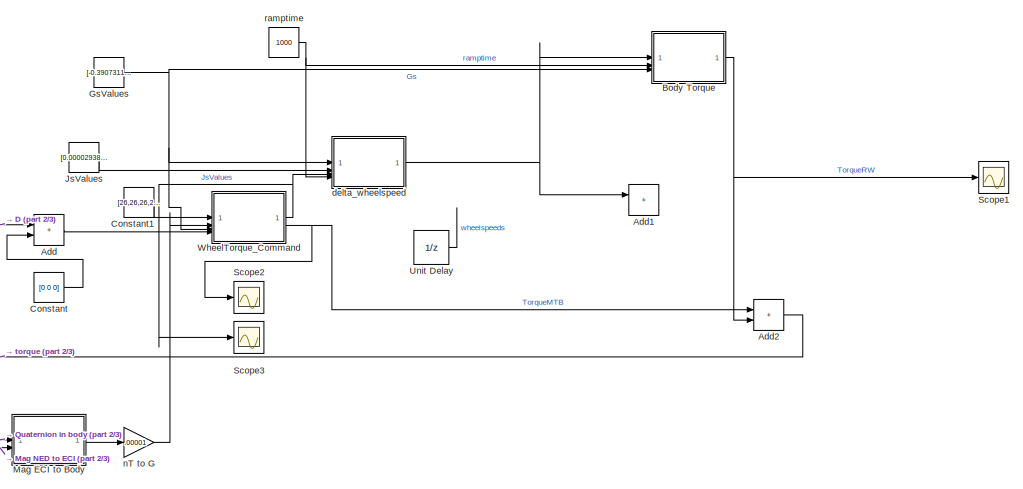
[diagram: root canvas - part 1/3, top center region]
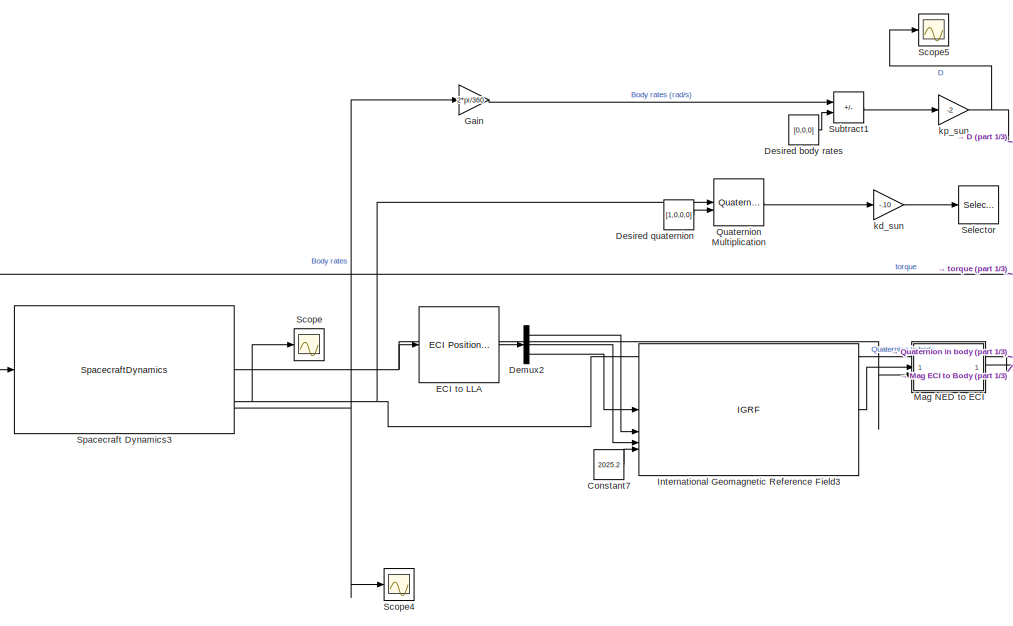
[diagram: root canvas - part 2/3, top left region]
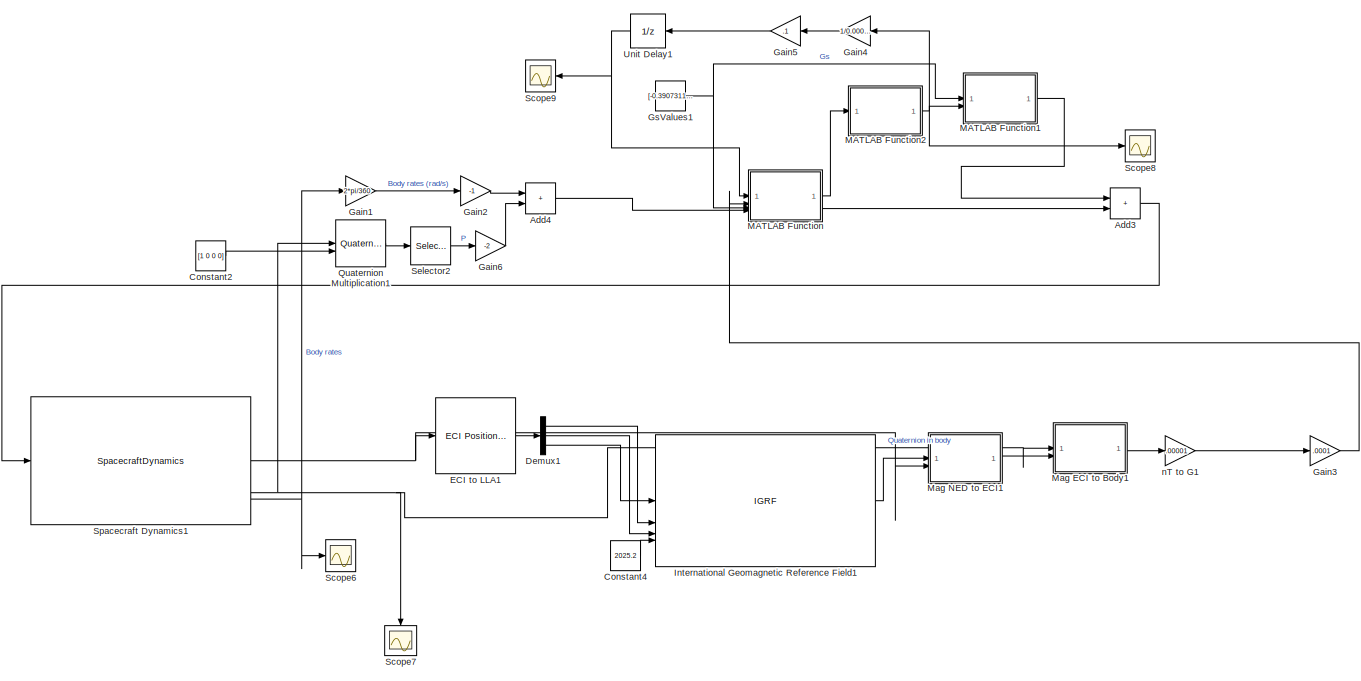
[diagram: root canvas - part 3/3, bottom right region]
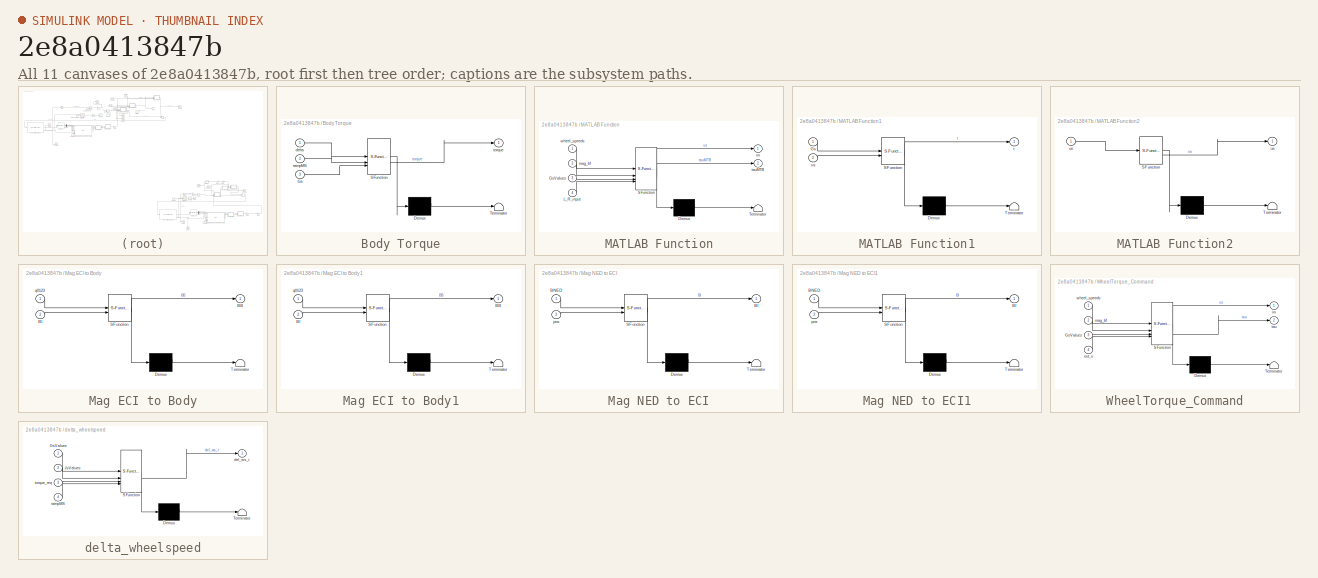
[diagram: thumbnail index - all 11 canvases of the model, root first then tree order]
MODEL slx_2e8a0413847b
KIND model
CONFIG AbsTol = auto
CONFIG EnableMultiTasking = off
CONFIG FixedStep = .1
CONFIG MaxStep = auto
CONFIG MinStep = auto
CONFIG RelTol = 1e-3
CONFIG SampleTimeConstraint = Unconstrained
CONFIG SolverName = FixedStepAuto
CONFIG StartTime = 0.0
CONFIG StopTime = 120
BLOCK [Sum] Add
  Commented = on
  IconShape = rectangular
BLOCK [Sum] Add1
  Commented = on
  IconShape = rectangular
BLOCK [Sum] Add2
  Commented = on
  IconShape = rectangular
BLOCK [Sum] Add3
  IconShape = rectangular
BLOCK [Sum] Add4
  IconShape = rectangular
BLOCK [SubSystem] Body Torque
  Commented = on
  ErrorFcn = Stateflow.Translate.translate
  PermitHierarchicalResolution = ExplicitOnly
  SFBlockType = MATLAB Function
  TreatAsAtomicUnit = on
BLOCK [Demux] Body Torque/ Demux 
  Outputs = 1
BLOCK [S-Function] Body Torque/ SFunction 
  EnableBusSupport = off
  FunctionName = sf_sfun
  PortCounts = [3 2]
  SFcnIsStateOwnerBlock = off
  SFunctionDeploymentMode = off
  Tag = Stateflow S-Function 5
BLOCK [Terminator] Body Torque/ Terminator 
BLOCK [Inport] Body Torque/Gs
  Port = 3
BLOCK [Inport] Body Torque/delta
BLOCK [Inport] Body Torque/rampMS
  Port = 2
BLOCK [Outport] Body Torque/torque
BLOCK [Constant] Constant
  Commented = on
  Value = [0 0 0]
BLOCK [Constant] Constant1
  Commented = on
  Value = [26,26,26,26]
BLOCK [Constant] Constant2
  Value = [1 0 0 0]
BLOCK [Constant] Constant4
  Value = 2025.2
BLOCK [Constant] Constant7
  Commented = on
  Value = 2025.2
BLOCK [Demux] Demux1
  Outputs = 3
BLOCK [Demux] Demux2
  Commented = on
  Outputs = 3
BLOCK [Constant] Desired body rates
  Commented = on
  Value = [0,0,0]
BLOCK [Constant] Desired quaternion
  Commented = on
  Value = [1,0,0,0]
BLOCK [Reference] ECI to LLA  REF=aerolibtransform2/ECI Position to LLA
  AttributesFormatString = %<red>
  Commented = on
  SourceBlock = aerolibtransform2/ECI Position to LLA
  SourceType = ECItoLLA
BLOCK [Reference] ECI to LLA1  REF=aerolibtransform2/ECI Position to LLA
  AttributesFormatString = %<red>
  SourceBlock = aerolibtransform2/ECI Position to LLA
  SourceType = ECItoLLA
BLOCK [Gain] Gain
  Commented = on
  Gain = 2*pi/360
BLOCK [Gain] Gain1
  Gain = 2*pi/360
BLOCK [Gain] Gain2
  Gain = -1
BLOCK [Gain] Gain3
  Gain = .0001
BLOCK [Gain] Gain4
  Gain = 1/0.000029382450521
  NameLocation = top
BLOCK [Gain] Gain5
  Gain = .1
  NameLocation = top
BLOCK [Gain] Gain6
  Gain = -2
BLOCK [Constant] GsValues
  Commented = on
  Value = [-0.390731128489274,-0.390731128489274,0.390731128489274,0.390731128489274;0.0,0.920504853452440,0.920504853452440,0.0;0.920504853452440,0.0,0.0,0.920504853452440]
BLOCK [Constant] GsValues1
  Value = [-0.390731128489274,-0.390731128489274,0.390731128489274,0.390731128489274;0.0,0.920504853452440,0.920504853452440,0.0;0.920504853452440,0.0,0.0,0.920504853452440]
BLOCK [IGRF] International Geomagnetic Reference Field1
  AttributesFormatString = %<generation>
  day = 1
  month = January
  sv_out = off
BLOCK [IGRF] International Geomagnetic Reference Field3
  AttributesFormatString = %<generation>
  Commented = on
  day = 1
  month = January
  sv_out = off
BLOCK [Constant] JsValues
  Commented = on
  Value = [0.000029382450521,0.000029382450521,0.000029382450521,0.000029382450521]
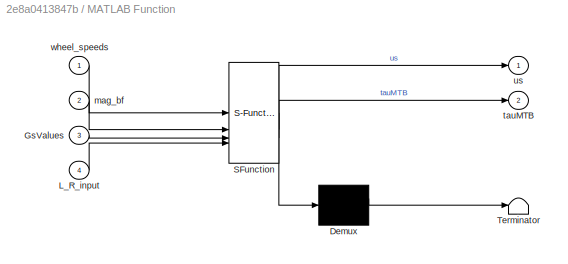
BLOCK [SubSystem] MATLAB Function
  ErrorFcn = Stateflow.Translate.translate
  PermitHierarchicalResolution = ExplicitOnly
  SFBlockType = MATLAB Function
  TreatAsAtomicUnit = on
BLOCK [Demux] MATLAB Function/ Demux 
  Outputs = 1
BLOCK [S-Function] MATLAB Function/ SFunction 
  EnableBusSupport = off
  FunctionName = sf_sfun
  PortCounts = [4 3]
  SFcnIsStateOwnerBlock = off
  SFunctionDeploymentMode = off
  Tag = Stateflow S-Function 2
BLOCK [Terminator] MATLAB Function/ Terminator 
BLOCK [Inport] MATLAB Function/GsValues
  Port = 3
BLOCK [Inport] MATLAB Function/L_R_input
  Port = 4
BLOCK [Inport] MATLAB Function/mag_bf
  Port = 2
BLOCK [Outport] MATLAB Function/tauMTB
  Port = 2
BLOCK [Outport] MATLAB Function/us
BLOCK [Inport] MATLAB Function/wheel_speeds
BLOCK [SubSystem] MATLAB Function1
  ErrorFcn = Stateflow.Translate.translate
  PermitHierarchicalResolution = ExplicitOnly
  SFBlockType = MATLAB Function
  TreatAsAtomicUnit = on
BLOCK [Demux] MATLAB Function1/ Demux 
  Outputs = 1
BLOCK [S-Function] MATLAB Function1/ SFunction 
  EnableBusSupport = off
  FunctionName = sf_sfun
  PortCounts = [2 2]
  SFcnIsStateOwnerBlock = off
  SFunctionDeploymentMode = off
  Tag = Stateflow S-Function 9
BLOCK [Terminator] MATLAB Function1/ Terminator 
BLOCK [Inport] MATLAB Function1/Gs
BLOCK [Outport] MATLAB Function1/t
BLOCK [Inport] MATLAB Function1/us
  Port = 2
BLOCK [SubSystem] MATLAB Function2
  ErrorFcn = Stateflow.Translate.translate
  PermitHierarchicalResolution = ExplicitOnly
  SFBlockType = MATLAB Function
  TreatAsAtomicUnit = on
BLOCK [Demux] MATLAB Function2/ Demux 
  Outputs = 1
BLOCK [S-Function] MATLAB Function2/ SFunction 
  EnableBusSupport = off
  FunctionName = sf_sfun
  PortCounts = [1 2]
  SFcnIsStateOwnerBlock = off
  SFunctionDeploymentMode = off
  Tag = Stateflow S-Function 10
BLOCK [Terminator] MATLAB Function2/ Terminator 
BLOCK [Outport] MATLAB Function2/us
BLOCK [Inport] MATLAB Function2/us 
BLOCK [SubSystem] Mag ECI to Body
  Commented = on
  ErrorFcn = Stateflow.Translate.translate
  PermitHierarchicalResolution = ExplicitOnly
  SFBlockType = MATLAB Function
  TreatAsAtomicUnit = on
BLOCK [Demux] Mag ECI to Body/ Demux 
  Outputs = 1
BLOCK [S-Function] Mag ECI to Body/ SFunction 
  EnableBusSupport = off
  FunctionName = sf_sfun
  PortCounts = [2 2]
  SFcnIsStateOwnerBlock = off
  SFunctionDeploymentMode = off
  Tag = Stateflow S-Function 7
BLOCK [Terminator] Mag ECI to Body/ Terminator 
BLOCK [Outport] Mag ECI to Body/BB
BLOCK [Inport] Mag ECI to Body/BI
  Port = 2
BLOCK [Inport] Mag ECI to Body/q0123
BLOCK [SubSystem] Mag ECI to Body1
  ErrorFcn = Stateflow.Translate.translate
  PermitHierarchicalResolution = ExplicitOnly
  SFBlockType = MATLAB Function
  TreatAsAtomicUnit = on
BLOCK [Demux] Mag ECI to Body1/ Demux 
  Outputs = 1
BLOCK [S-Function] Mag ECI to Body1/ SFunction 
  EnableBusSupport = off
  FunctionName = sf_sfun
  PortCounts = [2 2]
  SFcnIsStateOwnerBlock = off
  SFunctionDeploymentMode = off
  Tag = Stateflow S-Function 6
BLOCK [Terminator] Mag ECI to Body1/ Terminator 
BLOCK [Outport] Mag ECI to Body1/BB
BLOCK [Inport] Mag ECI to Body1/BI
  Port = 2
BLOCK [Inport] Mag ECI to Body1/q0123
BLOCK [SubSystem] Mag NED to ECI
  Commented = on
  ErrorFcn = Stateflow.Translate.translate
  PermitHierarchicalResolution = ExplicitOnly
  SFBlockType = MATLAB Function
  TreatAsAtomicUnit = on
BLOCK [Demux] Mag NED to ECI/ Demux 
  Outputs = 1
BLOCK [S-Function] Mag NED to ECI/ SFunction 
  EnableBusSupport = off
  FunctionName = sf_sfun
  PortCounts = [2 2]
  SFcnIsStateOwnerBlock = off
  SFunctionDeploymentMode = off
  Tag = Stateflow S-Function 3
BLOCK [Terminator] Mag NED to ECI/ Terminator 
BLOCK [Outport] Mag NED to ECI/BI
BLOCK [Inport] Mag NED to ECI/BNED
BLOCK [Inport] Mag NED to ECI/pos
  Port = 2
BLOCK [SubSystem] Mag NED to ECI1
  ErrorFcn = Stateflow.Translate.translate
  PermitHierarchicalResolution = ExplicitOnly
  SFBlockType = MATLAB Function
  TreatAsAtomicUnit = on
BLOCK [Demux] Mag NED to ECI1/ Demux 
  Outputs = 1
BLOCK [S-Function] Mag NED to ECI1/ SFunction 
  EnableBusSupport = off
  FunctionName = sf_sfun
  PortCounts = [2 2]
  SFcnIsStateOwnerBlock = off
  SFunctionDeploymentMode = off
  Tag = Stateflow S-Function 8
BLOCK [Terminator] Mag NED to ECI1/ Terminator 
BLOCK [Outport] Mag NED to ECI1/BI
BLOCK [Inport] Mag NED to ECI1/BNED
BLOCK [Inport] Mag NED to ECI1/pos
  Port = 2
BLOCK [Reference] Quaternion Multiplication  REF=aerolibutil/Quaternion
Multiplication
  Commented = on
  SourceBlock = aerolibutil/Quaternion\nMultiplication
  SourceType = Quaternion Multiplication
BLOCK [Reference] Quaternion Multiplication1  REF=aerolibutil/Quaternion
Multiplication
  SourceBlock = aerolibutil/Quaternion\nMultiplication
  SourceType = Quaternion Multiplication
BLOCK [Scope] Scope
  ActiveDisplayYMaximum = 1
  ActiveDisplayYMinimum = -1
  Commented = on
  Floating = off
  GraphicalSettings = {"Style":{"BackgroundColor":[0.12941176470588237,0.12941176470588237,0.12941176470588237],"AxesColor":[0.07058823529411765,0.07058823529411765,0.07058823529411765],"LabelsColor":[0.8509803921568627,0.8509803921568627,0.8509803921568627],"PreserveColors":false,"Visible":[true,true,true,true],"LineStyle":["-","-","-","-"],"LineWidth":[1.5,1.5,1.5,1.5],"BarWidth":[0.9,0.9,0.9,0.9],"LineColor":["auto"...<+2265ch>
  MultipleDisplayCache = [{"MaxYLimMag":1,"MaxYLimReal":1,"MinYLimMag":0,"MinYLimReal":-1,"PlotAsMagnitudePhase":false,"ShowGrid":true,"ShowLegend":false,"Title":"%<SignalLabel>","YLabel":""}]
  NumInputPorts = 1
  ScopeFrameLocation = window
  WasSavedAsWebScope = on
  WindowPosition = [360.000000,190.000000,560.000000,420.000000,]
BLOCK [Scope] Scope1
  ActiveDisplayYMaximum = 0.00162242274710922
  ActiveDisplayYMinimum = 0.00092159753269089109
  Commented = on
  DataLoggingVariableName = ScopeData1
  Floating = off
  GraphicalSettings = {"Style":{"BackgroundColor":[0.12941176470588237,0.12941176470588237,0.12941176470588237],"AxesColor":[0.07058823529411765,0.07058823529411765,0.07058823529411765],"LabelsColor":[0.8509803921568627,0.8509803921568627,0.8509803921568627],"PreserveColors":false,"Visible":[false,false,true],"LineStyle":["-","-","-"],"LineWidth":[1.5,1.5,1.5],"BarWidth":[0.9,0.9,0.9],"LineColor":["auto","auto","auto"]...<+2258ch>
  MultipleDisplayCache = [{"MaxYLimMag":0.0071560561557686168,"MaxYLimReal":0.00162242274710922,"MinYLimMag":0,"MinYLimReal":0.00092159753269089109,"PlotAsMagnitudePhase":false,"ShowGrid":true,"ShowLegend":true,"Title":"%<SignalLabel>","YLabel":""}]
  NumInputPorts = 1
  ScopeFrameLocation = window
  ShowLegend = on
  WasSavedAsWebScope = on
  WindowPosition = [360.000000,190.000000,560.000000,420.000000,]
BLOCK [Scope] Scope2
  ActiveDisplayYMaximum = 1
  ActiveDisplayYMinimum = -1
  Commented = on
  DataLoggingVariableName = ScopeData2
  Floating = off
  GraphicalSettings = {"Style":{"BackgroundColor":[0.12941176470588237,0.12941176470588237,0.12941176470588237],"AxesColor":[0.07058823529411765,0.07058823529411765,0.07058823529411765],"LabelsColor":[0.8509803921568627,0.8509803921568627,0.8509803921568627],"PreserveColors":false,"Visible":[true,true,true],"LineStyle":["-","-","-"],"LineWidth":[1.5,1.5,1.5],"BarWidth":[0.9,0.9,0.9],"LineColor":["auto","auto","auto"],"...<+2122ch>
  MultipleDisplayCache = [{"MaxYLimMag":1,"MaxYLimReal":1,"MinYLimMag":0,"MinYLimReal":-1,"PlotAsMagnitudePhase":false,"ShowGrid":true,"ShowLegend":false,"Title":"%<SignalLabel>","YLabel":""}]
  NumInputPorts = 1
  ScopeFrameLocation = window
  WasSavedAsWebScope = on
  WindowPosition = [360.000000,190.000000,560.000000,420.000000,]
BLOCK [Scope] Scope3
  ActiveDisplayYMaximum = 1
  ActiveDisplayYMinimum = -1
  Commented = on
  DataLoggingVariableName = ScopeData3
  Floating = off
  GraphicalSettings = {"Style":{"BackgroundColor":[0.12941176470588237,0.12941176470588237,0.12941176470588237],"AxesColor":[0.07058823529411765,0.07058823529411765,0.07058823529411765],"LabelsColor":[0.8509803921568627,0.8509803921568627,0.8509803921568627],"PreserveColors":false,"Visible":[true,true,true,true],"LineStyle":["-","-","-","-"],"LineWidth":[1.5,1.5,1.5,1.5],"BarWidth":[0.9,0.9,0.9,0.9],"LineColor":["auto"...<+2281ch>
  MultipleDisplayCache = [{"MaxYLimMag":1,"MaxYLimReal":1,"MinYLimMag":0,"MinYLimReal":-1,"PlotAsMagnitudePhase":false,"ShowGrid":true,"ShowLegend":false,"Title":"%<SignalLabel>","YLabel":""}]
  NumInputPorts = 1
  ScopeFrameLocation = window
  WasSavedAsWebScope = on
  WindowPosition = [360.000000,190.000000,560.000000,420.000000,]
BLOCK [Scope] Scope4
  ActiveDisplayYMaximum = 9.4040486463892474
  ActiveDisplayYMinimum = -4.2511925001015065
  Commented = on
  DataLoggingVariableName = ScopeData4
  Floating = off
  GraphicalSettings = {"AxesScalingProperties":{"AlignXAxis":"Center","AlignYAxis":"Center","AutoScaleXAxisLimits":false,"AxesScaling":"Manual","AxesScalingNumUpdates":10,"ExpandOnly":true,"ScaleAxesLimitsAtStop":false,"XAxisDataRange":100,"YAxisDataRange":80},"DisplayProperties":{"ColorOrder":["auto","auto","auto","auto","auto","auto","auto","auto","auto","auto","auto","auto","auto","auto","auto","auto","auto","auto",...<+2304ch>
  MultipleDisplayCache = [{"MaxYLimMag":106.77161907718389,"MaxYLimReal":9.4040486463892474,"MinYLimMag":0,"MinYLimReal":-4.2511925001015065,"PlotAsMagnitudePhase":false,"ShowGrid":true,"ShowLegend":true,"Title":"%<SignalLabel>","YLabel":"Body Rates (deg\/s)"}]
  NumInputPorts = 1
  ScopeFrameLocation = window
  ShowLegend = on
  ShowTimeAxisLabel = on
  WasSavedAsWebScope = on
  WindowPosition = [-16.000000,-36.000000,1280.000000,729.000000,]
  YLabel = Body Rates (deg/s)
BLOCK [Scope] Scope5
  ActiveDisplayYMaximum = -0.104671821526179
  ActiveDisplayYMinimum = -0.10478750798382198
  Commented = on
  DataLoggingVariableName = ScopeData5
  Floating = off
  GraphicalSettings = {"AxesScalingProperties":{"AlignXAxis":"Center","AlignYAxis":"Center","AutoScaleXAxisLimits":false,"AxesScaling":"Manual","AxesScalingNumUpdates":10,"ExpandOnly":true,"ScaleAxesLimitsAtStop":false,"XAxisDataRange":100,"YAxisDataRange":80},"DisplayProperties":{"ColorOrder":["auto","auto","auto","auto","auto","auto","auto","auto","auto","auto","auto","auto","auto","auto","auto","auto","auto","auto",...<+2194ch>
  MultipleDisplayCache = [{"MaxYLimMag":10,"MaxYLimReal":-0.104671821526179,"MinYLimMag":0,"MinYLimReal":-0.10478750798382198,"PlotAsMagnitudePhase":false,"ShowGrid":true,"ShowLegend":true,"Title":"%<SignalLabel>","YLabel":""}]
  NumInputPorts = 1
  ScopeFrameLocation = window
  ShowLegend = on
  WasSavedAsWebScope = on
  WindowPosition = [360.000000,190.000000,560.000000,420.000000,]
BLOCK [Scope] Scope6
  ActiveDisplayYMaximum = 4.0650082058708179
  ActiveDisplayYMinimum = -3.3418327171436069
  DataLoggingVariableName = ScopeData6
  Floating = off
  GraphicalSettings = {"Style":{"BackgroundColor":[0.12941176470588237,0.12941176470588237,0.12941176470588237],"AxesColor":[0.07058823529411765,0.07058823529411765,0.07058823529411765],"LabelsColor":[0.8509803921568627,0.8509803921568627,0.8509803921568627],"PreserveColors":false,"Visible":[true,true,true],"LineStyle":["-","-","-"],"LineWidth":[1.5,1.5,1.5],"BarWidth":[0.9,0.9,0.9],"LineColor":["auto","auto","auto"],"...<+2184ch>
  MultipleDisplayCache = [{"MaxYLimMag":1,"MaxYLimReal":4.0650082058708179,"MinYLimMag":0,"MinYLimReal":-3.3418327171436069,"PlotAsMagnitudePhase":false,"ShowGrid":true,"ShowLegend":false,"Title":"%<SignalLabel>","YLabel":""}]
  NumInputPorts = 1
  ScopeFrameLocation = window
  WasSavedAsWebScope = on
  WindowPosition = [360.000000,190.000000,560.000000,420.000000,]
BLOCK [Scope] Scope7
  ActiveDisplayYMaximum = 1.1261608391722715
  ActiveDisplayYMinimum = -0.13544755255044388
  DataLoggingVariableName = ScopeData9
  Floating = off
  GraphicalSettings = {"Style":{"BackgroundColor":[0.12941176470588237,0.12941176470588237,0.12941176470588237],"AxesColor":[0.07058823529411765,0.07058823529411765,0.07058823529411765],"LabelsColor":[0.8509803921568627,0.8509803921568627,0.8509803921568627],"PreserveColors":false,"Visible":[true,true,true,true],"LineStyle":["-","-","-","-"],"LineWidth":[1.5,1.5,1.5,1.5],"BarWidth":[0.9,0.9,0.9,0.9],"LineColor":["auto"...<+2369ch>
  MultipleDisplayCache = [{"MaxYLimMag":1.1261608391722715,"MaxYLimReal":1.1261608391722715,"MinYLimMag":0,"MinYLimReal":-0.13544755255044388,"PlotAsMagnitudePhase":false,"ShowGrid":true,"ShowLegend":false,"Title":"%<SignalLabel>","YLabel":""}]
  NameLocation = left
  NumInputPorts = 1
  ScopeFrameLocation = window
  WasSavedAsWebScope = on
  WindowPosition = [360.000000,190.000000,560.000000,420.000000,]
BLOCK [Scope] Scope8
  ActiveDisplayYMaximum = 0.800834010540642
  ActiveDisplayYMinimum = -0.14868626330450829
  DataLoggingVariableName = ScopeData7
  Floating = off
  GraphicalSettings = {"AxesScalingProperties":{"AlignXAxis":"Center","AlignYAxis":"Center","AutoScaleXAxisLimits":false,"AxesScaling":"Manual","AxesScalingNumUpdates":10,"ExpandOnly":true,"ScaleAxesLimitsAtStop":false,"XAxisDataRange":100,"YAxisDataRange":80},"DisplayProperties":{"ColorOrder":["auto","auto","auto","auto","auto","auto","auto","auto","auto","auto","auto","auto","auto","auto","auto","auto","auto","auto",...<+2287ch>
  MultipleDisplayCache = [{"MaxYLimMag":10,"MaxYLimReal":0.800834010540642,"MinYLimMag":0,"MinYLimReal":-0.14868626330450829,"PlotAsMagnitudePhase":false,"ShowGrid":true,"ShowLegend":false,"Title":"%<SignalLabel>","YLabel":""}]
  NumInputPorts = 1
  ScopeFrameLocation = window
  WasSavedAsWebScope = on
  WindowPosition = [360.000000,190.000000,560.000000,420.000000,]
BLOCK [Scope] Scope9
  ActiveDisplayYMaximum = 11.855297678315045
  ActiveDisplayYMinimum = -14.906936925115286
  DataLoggingVariableName = ScopeData8
  Floating = off
  GraphicalSettings = {"Style":{"BackgroundColor":[0.12941176470588237,0.12941176470588237,0.12941176470588237],"AxesColor":[0.07058823529411765,0.07058823529411765,0.07058823529411765],"LabelsColor":[0.8509803921568627,0.8509803921568627,0.8509803921568627],"PreserveColors":false,"Visible":[false,false,false,true],"LineStyle":["-","-","-","-"],"LineWidth":[1.5,1.5,1.5,1.5],"BarWidth":[0.9,0.9,0.9,0.9],"LineColor":["au...<+2363ch>
  MultipleDisplayCache = [{"MaxYLimMag":10,"MaxYLimReal":11.855297678315045,"MinYLimMag":0,"MinYLimReal":-14.906936925115286,"PlotAsMagnitudePhase":false,"ShowGrid":true,"ShowLegend":true,"Title":"%<SignalLabel>","YLabel":""}]
  NameLocation = top
  NumInputPorts = 1
  ScopeFrameLocation = window
  ShowLegend = on
  WasSavedAsWebScope = on
  WindowPosition = [360.000000,190.000000,560.000000,420.000000,]
BLOCK [Selector] Selector
  Commented = on
  IndexOptions = Index vector (dialog)
  Indices = [2 3 4]
  InputPortWidth = 4
  OutputSizes = 1
BLOCK [Selector] Selector2
  IndexOptions = Index vector (dialog)
  Indices = [2 3 4]
  InputPortWidth = 4
  OutputSizes = 1
BLOCK [SpacecraftDynamics] Spacecraft Dynamics1
  argPeriapsis = 0
  attitudeRate = [5 5 5]
  eccentricity = 0
  forcesIn = off
  inclination = 55
  inertia = [0.0797 -0.00005 0.00125 ;-0.00005 0.1291 -0.00103;0.00125 -0.00103 0.1310]
  mass = 9.0
  orbitType = Circular inclined
  raan = 0
  semiMajorAxis = 6821000
  startDate = 2460438.0
  trueAnomaly = 0
  useGravGrad = off
BLOCK [SpacecraftDynamics] Spacecraft Dynamics3
  Commented = on
  argPeriapsis = 0
  attitudeRate = [0 0 0]
  eccentricity = 0
  forcesIn = off
  inclination = 55
  inertia = [0.0797 -0.00005 0.00125 ;-0.00005 0.1291 -0.00103;0.00125 -0.00103 0.1310]
  mass = 9.0
  orbitType = Circular inclined
  raan = 0
  semiMajorAxis = 6821000
  startDate = 2460438.0
  trueAnomaly = 0
  useGravGrad = off
BLOCK [Sum] Subtract1
  Commented = on
  IconShape = rectangular
  Inputs = +-
BLOCK [UnitDelay] Unit Delay
  Commented = on
  HasFrameUpgradeWarning = on
  InitialCondition = [0;0;0;0]
  SampleTime = -1
BLOCK [UnitDelay] Unit Delay1
  HasFrameUpgradeWarning = on
  InitialCondition = [0;0;0;0]
  NameLocation = top
  SampleTime = -1
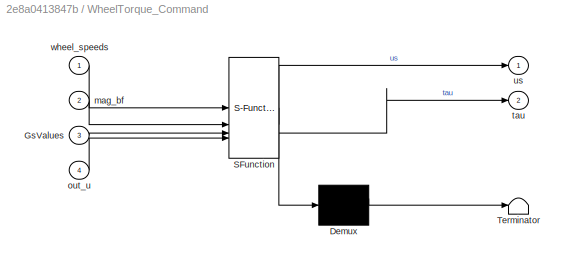
BLOCK [SubSystem] WheelTorque_Command
  Commented = on
  ErrorFcn = Stateflow.Translate.translate
  PermitHierarchicalResolution = ExplicitOnly
  SFBlockType = MATLAB Function
  TreatAsAtomicUnit = on
BLOCK [Demux] WheelTorque_Command/ Demux 
  Outputs = 1
BLOCK [S-Function] WheelTorque_Command/ SFunction 
  EnableBusSupport = off
  FunctionName = sf_sfun
  PortCounts = [4 3]
  SFcnIsStateOwnerBlock = off
  SFunctionDeploymentMode = off
  Tag = Stateflow S-Function 1
BLOCK [Terminator] WheelTorque_Command/ Terminator 
BLOCK [Inport] WheelTorque_Command/GsValues
  Port = 3
BLOCK [Inport] WheelTorque_Command/mag_bf
  Port = 2
BLOCK [Inport] WheelTorque_Command/out_u
  Port = 4
BLOCK [Outport] WheelTorque_Command/tau
  Port = 2
BLOCK [Outport] WheelTorque_Command/us
BLOCK [Inport] WheelTorque_Command/wheel_speeds
BLOCK [SubSystem] delta_wheelspeed
  Commented = on
  ErrorFcn = Stateflow.Translate.translate
  PermitHierarchicalResolution = ExplicitOnly
  SFBlockType = MATLAB Function
  TreatAsAtomicUnit = on
BLOCK [Demux] delta_wheelspeed/ Demux 
  Outputs = 1
BLOCK [S-Function] delta_wheelspeed/ SFunction 
  EnableBusSupport = off
  FunctionName = sf_sfun
  PortCounts = [4 2]
  SFcnIsStateOwnerBlock = off
  SFunctionDeploymentMode = off
  Tag = Stateflow S-Function 4
BLOCK [Terminator] delta_wheelspeed/ Terminator 
BLOCK [Inport] delta_wheelspeed/GsValues
BLOCK [Inport] delta_wheelspeed/JsValues
  Port = 2
BLOCK [Outport] delta_wheelspeed/del_ws_r
BLOCK [Inport] delta_wheelspeed/rampMS
  Port = 4
BLOCK [Inport] delta_wheelspeed/torque_req
  Port = 3
BLOCK [Gain] kd_sun
  Commented = on
  Gain = -.10
BLOCK [Gain] kp_sun
  Commented = on
  Gain = -2
BLOCK [Gain] nT to G
  Commented = on
  Gain = .00001
BLOCK [Gain] nT to G1
  Gain = .00001
BLOCK [Constant] ramptime
  Commented = on
  Value = 1000
LINE Add2:1 -> Spacecraft Dynamics3:1
LINE Add3:1 -> Spacecraft Dynamics1:1
LINE Add4:1 -> MATLAB Function:4
LINE Add:1 -> WheelTorque_Command:4
NET Body Torque:1 -> Add2:2, Scope1:1
LINE Constant1:1 -> WheelTorque_Command:1
LINE Constant2:1 -> Quaternion Multiplication1:2
LINE Constant4:1 -> International Geomagnetic Reference Field1:4
LINE Constant7:1 -> International Geomagnetic Reference Field3:4
LINE Constant:1 -> Add:2
LINE Demux1:1 -> International Geomagnetic Reference Field1:2
LINE Demux1:2 -> International Geomagnetic Reference Field1:3
LINE Demux1:3 -> International Geomagnetic Reference Field1:1
LINE Demux2:1 -> International Geomagnetic Reference Field3:2
LINE Demux2:2 -> International Geomagnetic Reference Field3:3
LINE Demux2:3 -> International Geomagnetic Reference Field3:1
LINE Desired body rates:1 -> Subtract1:2
LINE Desired quaternion:1 -> Quaternion Multiplication:2
LINE ECI to LLA1:1 -> Demux1:1
LINE ECI to LLA:1 -> Demux2:1
LINE Gain1:1 -> Gain2:1
LINE Gain2:1 -> Add4:1
LINE Gain3:1 -> MATLAB Function:2
LINE Gain4:1 -> Gain5:1
LINE Gain5:1 -> Unit Delay1:1
LINE Gain6:1 -> Add4:2
LINE Gain:1 -> Subtract1:1
NET GsValues1:1 -> MATLAB Function1:1, MATLAB Function:3
NET GsValues:1 -> Body Torque:3, WheelTorque_Command:3, delta_wheelspeed:1
LINE International Geomagnetic Reference Field1:1 -> Mag NED to ECI1:1
LINE International Geomagnetic Reference Field3:1 -> Mag NED to ECI:1
LINE JsValues:1 -> delta_wheelspeed:2
LINE MATLAB Function1:1 -> Add3:1
NET MATLAB Function2:1 -> Gain4:1, MATLAB Function1:2, Scope8:1
LINE MATLAB Function:1 -> MATLAB Function2:1
LINE MATLAB Function:2 -> Add3:2
LINE Mag ECI to Body1:1 -> nT to G1:1
LINE Mag ECI to Body:1 -> nT to G:1
LINE Mag NED to ECI1:1 -> Mag ECI to Body1:2
LINE Mag NED to ECI:1 -> Mag ECI to Body:2
LINE Quaternion Multiplication1:1 -> Selector2:1
LINE Quaternion Multiplication:1 -> kd_sun:1
LINE Selector2:1 -> Gain6:1
NET Spacecraft Dynamics1:1 -> ECI to LLA1:1, Mag NED to ECI1:2
NET Spacecraft Dynamics1:3 -> Mag ECI to Body1:1, Quaternion Multiplication1:1, Scope7:1
NET Spacecraft Dynamics1:4 -> Gain1:1, Scope6:1
NET Spacecraft Dynamics3:1 -> ECI to LLA:1, Mag NED to ECI:2
NET Spacecraft Dynamics3:3 -> Mag ECI to Body:1, Quaternion Multiplication:1, Scope:1
NET Spacecraft Dynamics3:4 -> Gain:1, Scope4:1
LINE Subtract1:1 -> kp_sun:1
NET Unit Delay1:1 -> MATLAB Function:1, Scope9:1
NET WheelTorque_Command:1 -> Scope3:1, delta_wheelspeed:3
NET WheelTorque_Command:2 -> Add2:1, Scope2:1
NET delta_wheelspeed:1 -> Add1:1, Body Torque:1
LINE kd_sun:1 -> Selector:1
NET kp_sun:1 -> Add:1, Scope5:1
LINE nT to G1:1 -> Gain3:1
LINE nT to G:1 -> WheelTorque_Command:2
NET ramptime:1 -> Body Torque:2, delta_wheelspeed:4
note: NET lines group one-source signal fan-out (src -> all destinations, sorted); 1:1 wires keep LINE
CHART WheelTorque_Command states=1 transitions=1
  STATE_LABEL 'eML_blk_kernel()'
  STATE_LABEL "SCRIPT:\nfunction [us,tau] = wt(wheel_speeds, mag_bf, GsValues, out_u)\n\n    % RW spin axis inertia\n    Iws = 0.000029382450521;\n    % Despin gain scaler (make this small so it doesn't dominate)\n    c   = 0.00005;     \n    \n    % Build Gs matrix\n    G_s = [ GsValues(1:4) ; \n            GsValues(5:8) ; \n            GsValues(9:12) ];\n    \n    % Wheel speed bias (rad/s)\n    OmegaD = 250*2*pi/60 * ones(...<+2688ch>"
CHART MATLAB Function states=1 transitions=1
  STATE_LABEL 'eML_blk_kernel()'
  STATE_LABEL 'SCRIPT:\nfunction [us, tauMTB]  = WheelTorque_Command(wheel_speeds, mag_bf, GsValues, L_R_input)\n% MATLAB Function block version of WheelTorque_Command\n%\n% Inputs:\n%   wheel_speeds [4x1]   : Reaction wheel speeds [rad/s]\n%   mag_bf       [3x1]   : Magnetic field vector in body frame [T]\n%   GsValues     [3x4]   : Wheel geometry / spin axis matrix\n%   L_R_input    [3x1]   : Desired control torque fr...<+1445ch>'
CHART Mag NED to ECI states=1 transitions=1
  STATE_LABEL 'eML_blk_kernel()'
  STATE_LABEL 'SCRIPT:\nfunction BI = NED2I(BNED,pos)\n\nrvec = [pos(1); pos(2); pos(3)];\nrho = norm(rvec);\n\nphi=0;\ntheta = acos(pos(3) / rho);\npsi = atan2(pos(2), pos(1));\n\nct = cos(theta);\nst = sin(theta);\nsp = sin(phi);\ncp = cos(phi);\nss = sin(psi);\ncs = cos(psi);\n\nBI = [ct*cs,sp*st*cs-cp*ss,cp*st*cs+sp*ss;\n    ct*ss,sp*st*ss+cp*cs,cp*st*ss-sp*cs;\n    -st,sp*ct,cp*ct] * BNED;\n'
CHART delta_wheelspeed states=1 transitions=1
  STATE_LABEL 'eML_blk_kernel()'
  STATE_LABEL 'SCRIPT:\nfunction del_ws_r   = d(GsValues, JsValues, torque_req, rampMS)\n\n    % ---- constants ----\n    US_MAX = 0.0032; % [Nm] max torque per wheel\n    ramptime = rampMS / 1000; % seconds\n\n    % ---- Step 4: Torque saturation ----\n    u_s = torque_req(:);\n    u_s = max(min(u_s, US_MAX), -US_MAX);\n\n    % ---- Step 5: Torque -> angular acceleration ----\n    rw_ang_acc = u_s(:) ./ JsValues(:);\n\n    %...<+210ch>'
CHART Body Torque states=1 transitions=1
  STATE_LABEL 'eML_blk_kernel()'
  STATE_LABEL 'SCRIPT:\nfunction torque = torq(delta,rampMS,Gs)\n\nJsValues = [0.000029382450521,0.000029382450521,0.000029382450521,...\n\t\t\t0.000029382450521];\nomegadot=delta/(rampMS/1000);\n%omegadot_rad_s2 = omegadot * conv_factor;  % 4x1\n\n    % 3) Wheel torques (Nm): u_s = J * omegadot (elementwise)\n    torque = -Gs*(JsValues(:) .* omegadot(:));\n\n\nend\n'
CHART Mag ECI to Body1 states=1 transitions=1
  STATE_LABEL 'eML_blk_kernel()'
  STATE_LABEL "SCRIPT:\nfunction BB = I2B(q0123,BI)\n%compute R such that v(inertial) = TIB v(body)\n\nq0 = q0123(1);\nq1 = q0123(2);\nq2 = q0123(3);\nq3 = q0123(4);\n\nBB = [(q0^2+q1^2-q2^2-q3^2) 2*(q1*q2-q0*q3)  2*(q0*q2+q1*q3);\n      2*(q1*q2+q0*q3) (q0^2-q1^2+q2^2-q3^2) 2*(q2*q3-q0*q1);\n      2*(q1*q3-q0*q2) 2*(q0*q1+q2*q3) (q0^2-q1^2-q2^2+q3^2)]' * BI;\n% Matrix originally adopted from Boom 2010 - Mark Costello\n% Cop...<+124ch>"
CHART Mag ECI to Body states=1 transitions=1
  STATE_LABEL 'eML_blk_kernel()'
  STATE_LABEL "SCRIPT:\nfunction BB = I2B(q0123,BI)\n%compute R such that v(inertial) = TIB v(body)\n\nq0 = q0123(1);\nq1 = q0123(2);\nq2 = q0123(3);\nq3 = q0123(4);\n\nBB = [(q0^2+q1^2-q2^2-q3^2) 2*(q1*q2-q0*q3)  2*(q0*q2+q1*q3);\n      2*(q1*q2+q0*q3) (q0^2-q1^2+q2^2-q3^2) 2*(q2*q3-q0*q1);\n      2*(q1*q3-q0*q2) 2*(q0*q1+q2*q3) (q0^2-q1^2-q2^2+q3^2)]' * BI;\n% Matrix originally adopted from Boom 2010 - Mark Costello\n% Cop...<+124ch>"
CHART Mag NED to ECI1 states=1 transitions=1
  STATE_LABEL 'eML_blk_kernel()'
  STATE_LABEL 'SCRIPT:\nfunction BI = NED2I(BNED,pos)\n\nrvec = [pos(1); pos(2); pos(3)];\nrho = norm(rvec);\n\nphi=0;\ntheta = acos(pos(3) / rho);\npsi = atan2(pos(2), pos(1));\n\nct = cos(theta);\nst = sin(theta);\nsp = sin(phi);\ncp = cos(phi);\nss = sin(psi);\ncs = cos(psi);\n\nBI = [ct*cs,sp*st*cs-cp*ss,cp*st*cs+sp*ss;\n    ct*ss,sp*st*ss+cp*cs,cp*st*ss-sp*cs;\n    -st,sp*ct,cp*ct] * BNED;\n'
CHART MATLAB Function1 states=1 transitions=1
  STATE_LABEL 'eML_blk_kernel()'
  STATE_LABEL 'SCRIPT:\nfunction t = fcn(Gs,us)\n\nt = -Gs*us;\n\n\n'
CHART MATLAB Function2 states=1 transitions=1
  STATE_LABEL 'eML_blk_kernel()'
  STATE_LABEL 'SCRIPT:\nfunction us = fcn(us)\n\nfor i = 1:4\n    if(us(i)>.0032)\n        us(i) = .0032;\n    end\n    if(us(i)<.0032)\n        us(i)=-.0032;\n    end\nend\n'
CHART  states=0 transitions=0
CHART  states=0 transitions=0
CHART  states=0 transitions=0
CHART  states=0 transitions=0
CHART  states=0 transitions=0
CHART  states=0 transitions=0
CHART  states=0 transitions=0
CHART  states=0 transitions=0
CHART  states=0 transitions=0
CHART  states=0 transitions=0
